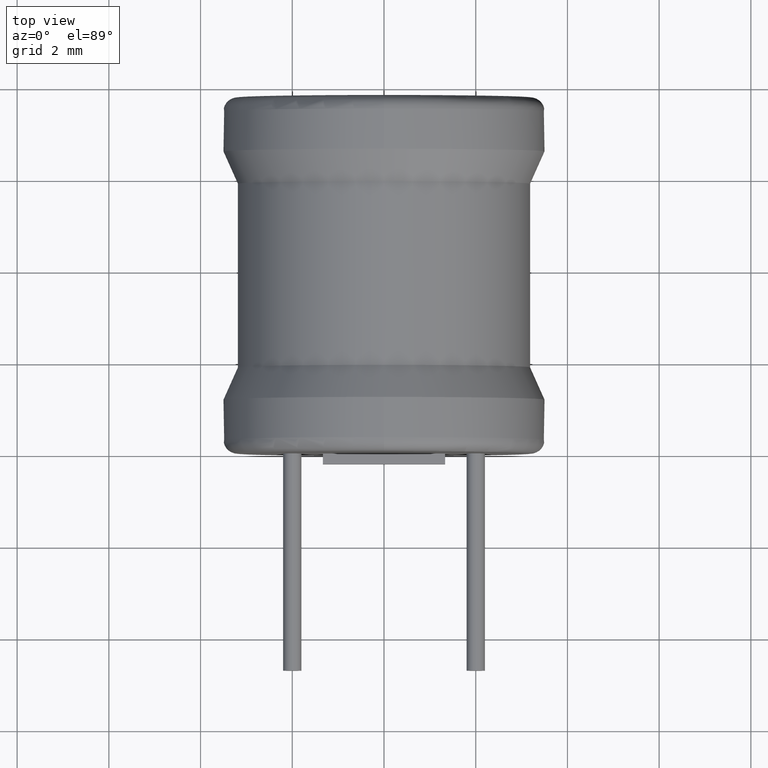
[diagram: clean part render]
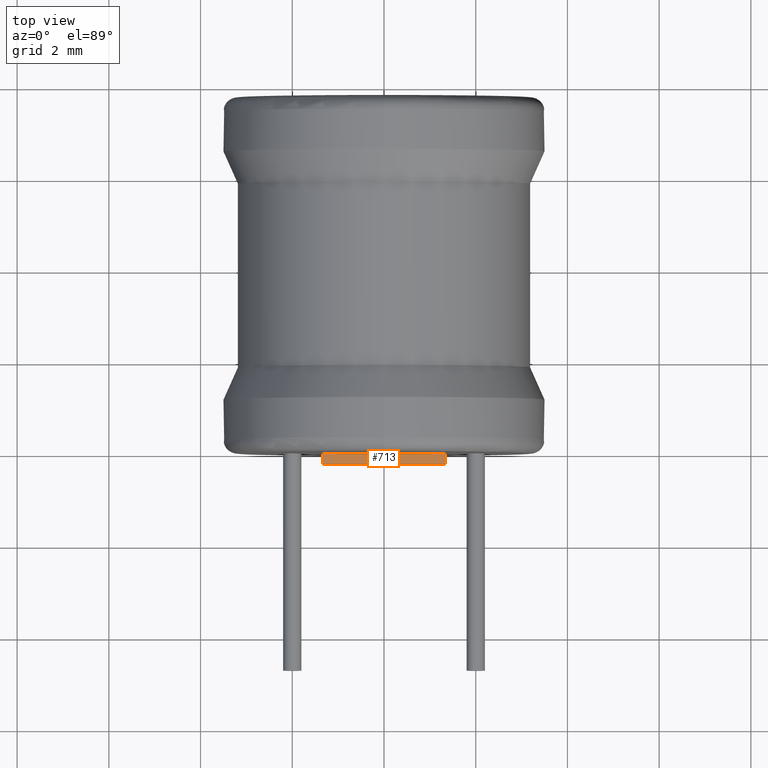
[diagram: same view with one face highlighted and labeled with its STEP entity id]
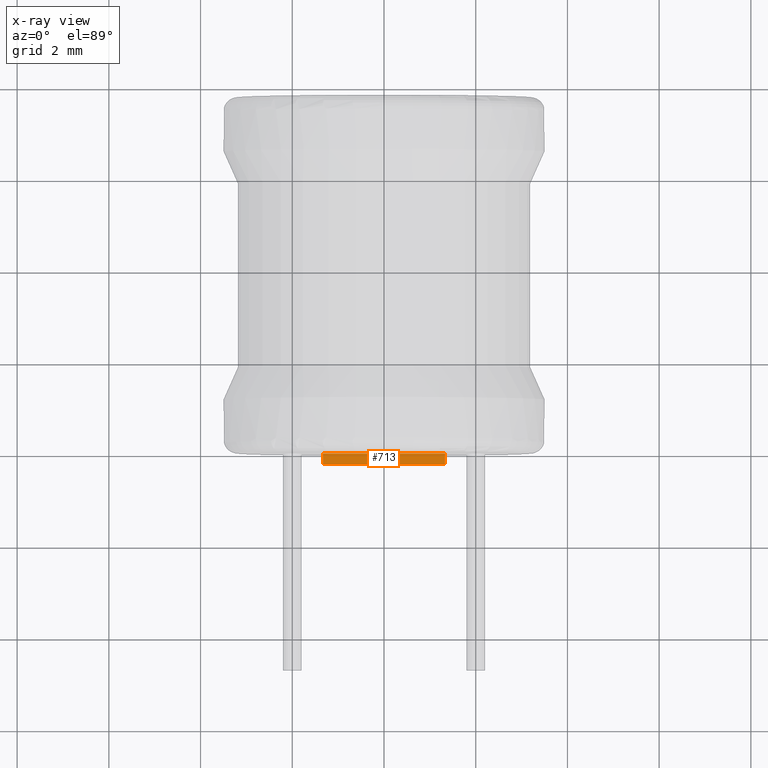
[diagram: x-ray of the same camera — body ghosted, the highlighted face saturated]
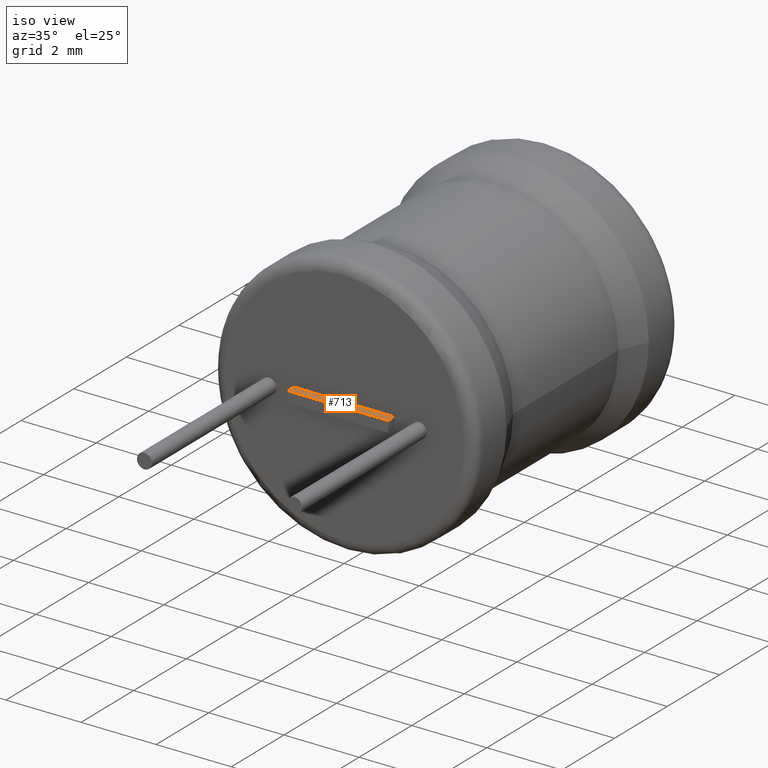
[diagram: same view with one face highlighted and labeled with its STEP entity id]
A machine part, top view. The second image highlights one B-rep face of the part: STEP entity #713.
The next image is the same camera in x-ray: the body ghosted, the highlighted face saturated — about 0% of this face is hidden behind the body in this view.
A second angle (iso view) of the same face is appended — the face is thin or edge-on in the first view.
In plain terms, the highlighted planar face has unit normal (0, 0, -1).
Its self-contained STEP definition (entity closure, byte-faithful):
#11 = ORIENTED_EDGE ( 'NONE', *, *, #2877, .T. ) ;
#130 = VECTOR ( 'NONE', #901, 1000.000000000000000 ) ;
#147 = EDGE_CURVE ( 'NONE', #2634, #2838, #655, .T. ) ;
#240 = VECTOR ( 'NONE', #2079, 1000.000000000000000 ) ;
#242 = EDGE_CURVE ( 'NONE', #555, #1959, #2555, .T. ) ;
#397 = LINE ( 'NONE', #1354, #718 ) ;
#427 = ORIENTED_EDGE ( 'NONE', *, *, #147, .F. ) ;
#465 = ORIENTED_EDGE ( 'NONE', *, *, #242, .T. ) ;
#555 = VERTEX_POINT ( 'NONE', #1801 ) ;
#655 = LINE ( 'NONE', #1578, #240 ) ;
#713 = ADVANCED_FACE ( 'NONE', ( #1477 ), #1773, .F. ) ;
#718 = VECTOR ( 'NONE', #2348, 1000.000000000000000 ) ;
#815 = CARTESIAN_POINT ( 'NONE',  ( 0.0000000000000000000, -0.2351999999999999900, 0.1499999999999996300 ) ) ;
#901 = DIRECTION ( 'NONE',  ( -1.000000000000000000, 0.0000000000000000000, -2.641422084391221300E-016 ) ) ;
#918 = CARTESIAN_POINT ( 'NONE',  ( 1.334000000000000100, -0.2351999999999999900, 0.1499999999999992700 ) ) ;
#1004 = EDGE_LOOP ( 'NONE', ( #11, #427, #2299, #465 ) ) ;
#1251 = VECTOR ( 'NONE', #2310, 1000.000000000000000 ) ;
#1326 = CARTESIAN_POINT ( 'NONE',  ( -1.334000000000000100, -0.2351999999999999900, 0.1499999999999992700 ) ) ;
#1354 = CARTESIAN_POINT ( 'NONE',  ( 0.0000000000000000000, 0.0000000000000000000, 0.1499999999999996300 ) ) ;
#1477 = FACE_OUTER_BOUND ( 'NONE', #1004, .T. ) ;
#1578 = CARTESIAN_POINT ( 'NONE',  ( -1.334000000000000100, -0.2351999999999999900, 0.1499999999999992700 ) ) ;
#1610 = AXIS2_PLACEMENT_3D ( 'NONE', #815, #1782, #1742 ) ;
#1740 = CARTESIAN_POINT ( 'NONE',  ( 1.334000000000000100, 0.0000000000000000000, 0.1499999999999992700 ) ) ;
#1742 = DIRECTION ( 'NONE',  ( -1.000000000000000000, 0.0000000000000000000, -2.641422084391221300E-016 ) ) ;
#1773 = PLANE ( 'NONE',  #1610 ) ;
#1782 = DIRECTION ( 'NONE',  ( 2.641422084391221300E-016, 0.0000000000000000000, -1.000000000000000000 ) ) ;
#1801 = CARTESIAN_POINT ( 'NONE',  ( 1.334000000000000100, -0.2351999999999999900, 0.1499999999999992700 ) ) ;
#1959 = VERTEX_POINT ( 'NONE', #1740 ) ;
#2061 = CARTESIAN_POINT ( 'NONE',  ( 0.0000000000000000000, -0.2351999999999999900, 0.1499999999999996300 ) ) ;
#2079 = DIRECTION ( 'NONE',  ( -0.0000000000000000000, 1.000000000000000000, -0.0000000000000000000 ) ) ;
#2110 = CARTESIAN_POINT ( 'NONE',  ( -1.334000000000000100, 0.0000000000000000000, 0.1499999999999992700 ) ) ;
#2230 = EDGE_CURVE ( 'NONE', #555, #2634, #2926, .T. ) ;
#2299 = ORIENTED_EDGE ( 'NONE', *, *, #2230, .F. ) ;
#2310 = DIRECTION ( 'NONE',  ( -0.0000000000000000000, 1.000000000000000000, -0.0000000000000000000 ) ) ;
#2348 = DIRECTION ( 'NONE',  ( -1.000000000000000000, 0.0000000000000000000, -2.641422084391221300E-016 ) ) ;
#2555 = LINE ( 'NONE', #918, #1251 ) ;
#2634 = VERTEX_POINT ( 'NONE', #1326 ) ;
#2838 = VERTEX_POINT ( 'NONE', #2110 ) ;
#2877 = EDGE_CURVE ( 'NONE', #1959, #2838, #397, .T. ) ;
#2926 = LINE ( 'NONE', #2061, #130 ) ;